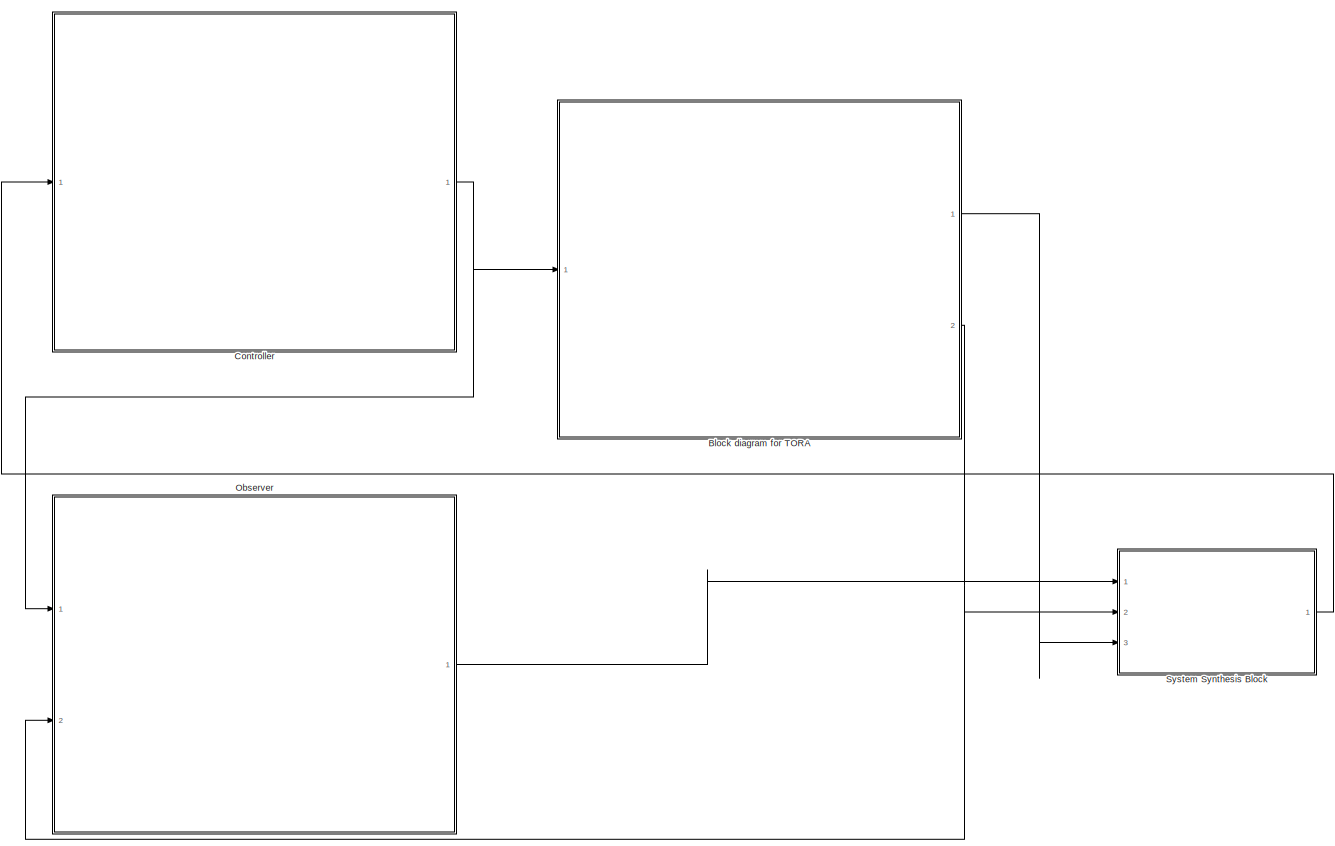
[diagram: root canvas - part 1/1, most of the canvas]
MODEL slx_e6becb501de5
KIND model
CONFIG AbsTol = auto
CONFIG EnableMultiTasking = off
CONFIG FixedStep = auto
CONFIG MaxStep = auto
CONFIG MinStep = auto
CONFIG RelTol = 1e-3
CONFIG SampleTimeConstraint = Unconstrained
CONFIG Solver = VariableStepAuto
CONFIG SolverName = VariableStepAuto
CONFIG StartTime = 0.0
CONFIG StopTime = 10.0
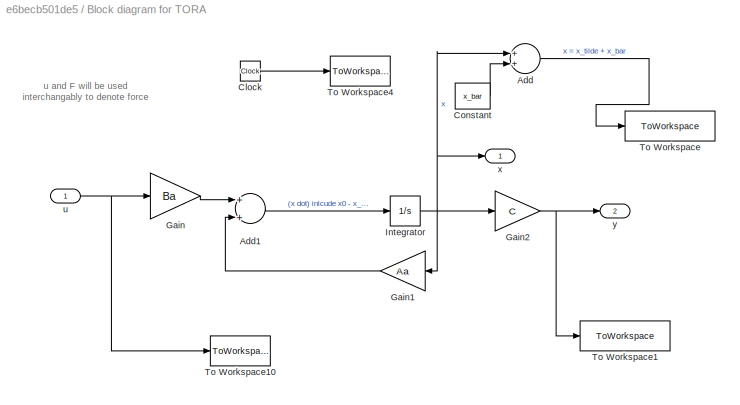
BLOCK [SubSystem] Block diagram for TORA
  Ports = [1, 2]
  RequestExecContextInheritance = off
BLOCK [Sum] Block diagram for TORA/Add
  InputSameDT = off
  OutDataTypeStr = Inherit: Inherit via internal rule
  Ports = [2, 1]
  SaturateOnIntegerOverflow = off
BLOCK [Sum] Block diagram for TORA/Add1
  InputSameDT = off
  OutDataTypeStr = Inherit: Inherit via internal rule
  Ports = [2, 1]
  SaturateOnIntegerOverflow = off
BLOCK [Clock] Block diagram for TORA/Clock
BLOCK [Constant] Block diagram for TORA/Constant
  Value = x_bar
BLOCK [Gain] Block diagram for TORA/Gain
  Gain = Ba
  Multiplication = Matrix(K*u)
  OutDataTypeStr = Inherit: Inherit via internal rule
  ParamDataTypeStr = Inherit: Inherit via internal rule
  SaturateOnIntegerOverflow = off
BLOCK [Gain] Block diagram for TORA/Gain1
  Gain = Aa
  Multiplication = Matrix(K*u)
  OutDataTypeStr = Inherit: Inherit via internal rule
  ParamDataTypeStr = Inherit: Inherit via internal rule
  SaturateOnIntegerOverflow = off
BLOCK [Gain] Block diagram for TORA/Gain2
  Gain = C
  Multiplication = Matrix(K*u)
  OutDataTypeStr = Inherit: Inherit via internal rule
  ParamDataTypeStr = Inherit: Inherit via internal rule
  SaturateOnIntegerOverflow = off
BLOCK [Integrator] Block diagram for TORA/Integrator
  InitialCondition = x0-x_bar
  Ports = [1, 1]
BLOCK [ToWorkspace] Block diagram for TORA/To Workspace
  FixptAsFi = on
  MaxDataPoints = inf
  Ports = [1]
  SampleTime = -1
  VariableName = x
BLOCK [ToWorkspace] Block diagram for TORA/To Workspace1
  FixptAsFi = on
  MaxDataPoints = inf
  Ports = [1]
  SampleTime = -1
  VariableName = y
BLOCK [ToWorkspace] Block diagram for TORA/To Workspace10
  MaxDataPoints = inf
  Ports = [1]
  SampleTime = -1
  VariableName = F
BLOCK [ToWorkspace] Block diagram for TORA/To Workspace4
  MaxDataPoints = inf
  Ports = [1]
  SampleTime = -1
  VariableName = t
BLOCK [Inport] Block diagram for TORA/u
  IconDisplay = Port number
BLOCK [Outport] Block diagram for TORA/x 
  IconDisplay = Port number
  VectorParamsAs1DForOutWhenUnconnected = off
BLOCK [Outport] Block diagram for TORA/y
  IconDisplay = Port number
  Port = 2
  VectorParamsAs1DForOutWhenUnconnected = off
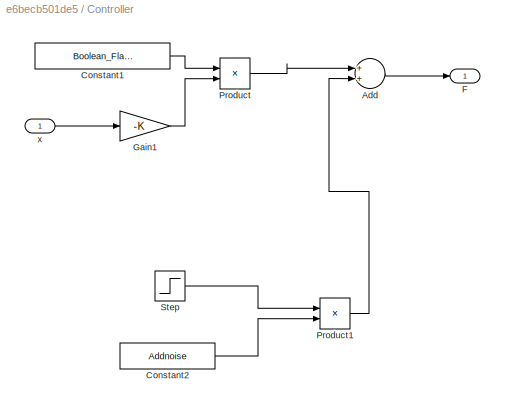
BLOCK [SubSystem] Controller
  Ports = [1, 1]
  RequestExecContextInheritance = off
BLOCK [Sum] Controller/Add
  InputSameDT = off
  OutDataTypeStr = Inherit: Inherit via internal rule
  Ports = [2, 1]
  SaturateOnIntegerOverflow = off
BLOCK [Constant] Controller/Constant1
  Value = Boolean_Flag_for_Controller
BLOCK [Constant] Controller/Constant2
  Value = Addnoise
BLOCK [Outport] Controller/F
  IconDisplay = Port number
BLOCK [Gain] Controller/Gain1
  Gain = -K
  Multiplication = Matrix(K*u)
  OutDataTypeStr = Inherit: Inherit via internal rule
  ParamDataTypeStr = Inherit: Inherit via internal rule
  SaturateOnIntegerOverflow = off
BLOCK [Product] Controller/Product
  InputSameDT = off
  OutDataTypeStr = Inherit: Inherit via internal rule
  Ports = [2, 1]
  RndMeth = Floor
  SaturateOnIntegerOverflow = off
BLOCK [Product] Controller/Product1
  InputSameDT = off
  OutDataTypeStr = Inherit: Inherit via internal rule
  Ports = [2, 1]
  RndMeth = Floor
  SaturateOnIntegerOverflow = off
BLOCK [Step] Controller/Step
  After = 2
  SampleTime = 0
  Time = 5
BLOCK [Inport] Controller/x
  IconDisplay = Port number
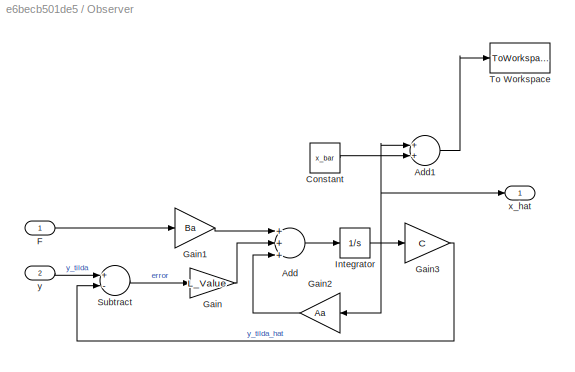
BLOCK [SubSystem] Observer
  Ports = [2, 1]
  RequestExecContextInheritance = off
BLOCK [Sum] Observer/Add
  InputSameDT = off
  Inputs = +++
  OutDataTypeStr = Inherit: Inherit via internal rule
  Ports = [3, 1]
  SaturateOnIntegerOverflow = off
BLOCK [Sum] Observer/Add1
  InputSameDT = off
  OutDataTypeStr = Inherit: Inherit via internal rule
  Ports = [2, 1]
  SaturateOnIntegerOverflow = off
BLOCK [Constant] Observer/Constant
  Value = x_bar
BLOCK [Inport] Observer/F
  IconDisplay = Port number
BLOCK [Gain] Observer/Gain
  Gain = L_Value
  Multiplication = Matrix(K*u)
  OutDataTypeStr = Inherit: Inherit via internal rule
  ParamDataTypeStr = Inherit: Inherit via internal rule
  SaturateOnIntegerOverflow = off
BLOCK [Gain] Observer/Gain1
  Gain = Ba
  Multiplication = Matrix(K*u)
  OutDataTypeStr = Inherit: Inherit via internal rule
  ParamDataTypeStr = Inherit: Inherit via internal rule
  SaturateOnIntegerOverflow = off
BLOCK [Gain] Observer/Gain2
  Gain = Aa
  Multiplication = Matrix(K*u)
  OutDataTypeStr = Inherit: Inherit via internal rule
  ParamDataTypeStr = Inherit: Inherit via internal rule
  SaturateOnIntegerOverflow = off
BLOCK [Gain] Observer/Gain3
  Gain = C
  Multiplication = Matrix(K*u)
  OutDataTypeStr = Inherit: Inherit via internal rule
  ParamDataTypeStr = Inherit: Inherit via internal rule
  SaturateOnIntegerOverflow = off
BLOCK [Integrator] Observer/Integrator
  Ports = [1, 1]
BLOCK [Sum] Observer/Subtract
  InputSameDT = off
  Inputs = +-
  OutDataTypeStr = Inherit: Inherit via internal rule
  Ports = [2, 1]
  SaturateOnIntegerOverflow = off
BLOCK [ToWorkspace] Observer/To Workspace
  FixptAsFi = on
  MaxDataPoints = inf
  Ports = [1]
  SampleTime = -1
  VariableName = x_hat
BLOCK [Outport] Observer/x_hat
  IconDisplay = Port number
  VectorParamsAs1DForOutWhenUnconnected = off
BLOCK [Inport] Observer/y
  IconDisplay = Port number
  Port = 2
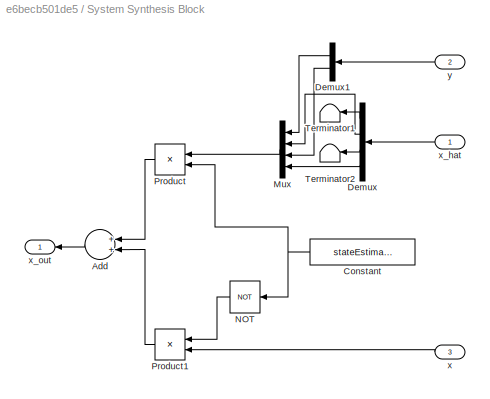
BLOCK [SubSystem] System Synthesis Block
  Ports = [3, 1]
  RequestExecContextInheritance = off
BLOCK [Sum] System Synthesis Block/Add
  InputSameDT = off
  OutDataTypeStr = Inherit: Inherit via internal rule
  Ports = [2, 1]
  SaturateOnIntegerOverflow = off
BLOCK [Constant] System Synthesis Block/Constant
  Value = stateEstimates
BLOCK [Demux] System Synthesis Block/Demux
  DisplayOption = bar
  Ports = [1, 4]
BLOCK [Demux] System Synthesis Block/Demux1
  DisplayOption = bar
  Outputs = 2
  Ports = [1, 2]
BLOCK [Mux] System Synthesis Block/Mux
  DisplayOption = bar
  Ports = [4, 1]
BLOCK [Logic] System Synthesis Block/NOT
  AllPortsSameDT = off
  IconShape = distinctive
  Operator = NOT
  OutDataTypeStr = boolean
  Ports = [1, 1]
BLOCK [Product] System Synthesis Block/Product
  InputSameDT = off
  OutDataTypeStr = Inherit: Inherit via internal rule
  Ports = [2, 1]
  RndMeth = Floor
  SaturateOnIntegerOverflow = off
BLOCK [Product] System Synthesis Block/Product1
  InputSameDT = off
  OutDataTypeStr = Inherit: Inherit via internal rule
  Ports = [2, 1]
  RndMeth = Floor
  SaturateOnIntegerOverflow = off
BLOCK [Terminator] System Synthesis Block/Terminator1
BLOCK [Terminator] System Synthesis Block/Terminator2
BLOCK [Inport] System Synthesis Block/x
  IconDisplay = Port number
  Port = 3
BLOCK [Inport] System Synthesis Block/x_hat
  IconDisplay = Port number
BLOCK [Outport] System Synthesis Block/x_out
  IconDisplay = Port number
BLOCK [Inport] System Synthesis Block/y
  IconDisplay = Port number
  Port = 2
ANNOTATION Block diagram for TORA: u and F will be used interchangably to denote force
LINE Block diagram for TORA/Add1:1 -> Block diagram for TORA/Integrator:1
LINE Block diagram for TORA/Add:1 -> Block diagram for TORA/To Workspace:1
LINE Block diagram for TORA/Clock:1 -> Block diagram for TORA/To Workspace4:1
LINE Block diagram for TORA/Constant:1 -> Block diagram for TORA/Add:2
LINE Block diagram for TORA/Gain1:1 -> Block diagram for TORA/Add1:2
NET Block diagram for TORA/Gain2:1 -> Block diagram for TORA/To Workspace1:1, Block diagram for TORA/y:1
LINE Block diagram for TORA/Gain:1 -> Block diagram for TORA/Add1:1
NET Block diagram for TORA/Integrator:1 -> Block diagram for TORA/Add:1, Block diagram for TORA/Gain1:1, Block diagram for TORA/Gain2:1, Block diagram for TORA/x :1
NET Block diagram for TORA/u:1 -> Block diagram for TORA/Gain:1, Block diagram for TORA/To Workspace10:1
LINE Block diagram for TORA:1 -> System Synthesis Block:3
NET Block diagram for TORA:2 -> Observer:2, System Synthesis Block:2
LINE Controller/Add:1 -> Controller/F:1
LINE Controller/Constant1:1 -> Controller/Product:1
LINE Controller/Constant2:1 -> Controller/Product1:2
LINE Controller/Gain1:1 -> Controller/Product:2
LINE Controller/Product1:1 -> Controller/Add:2
LINE Controller/Product:1 -> Controller/Add:1
LINE Controller/Step:1 -> Controller/Product1:1
LINE Controller/x:1 -> Controller/Gain1:1
NET Controller:1 -> Block diagram for TORA:1, Observer:1
LINE Observer/Add1:1 -> Observer/To Workspace:1
LINE Observer/Add:1 -> Observer/Integrator:1
LINE Observer/Constant:1 -> Observer/Add1:2
LINE Observer/F:1 -> Observer/Gain1:1
LINE Observer/Gain1:1 -> Observer/Add:1
LINE Observer/Gain2:1 -> Observer/Add:3
LINE Observer/Gain3:1 -> Observer/Subtract:2
LINE Observer/Gain:1 -> Observer/Add:2
NET Observer/Integrator:1 -> Observer/Add1:1, Observer/Gain2:1, Observer/Gain3:1, Observer/x_hat:1
LINE Observer/Subtract:1 -> Observer/Gain:1
LINE Observer/y:1 -> Observer/Subtract:1
LINE Observer:1 -> System Synthesis Block:1
LINE System Synthesis Block/Add:1 -> System Synthesis Block/x_out:1
NET System Synthesis Block/Constant:1 -> System Synthesis Block/NOT:1, System Synthesis Block/Product:2
LINE System Synthesis Block/Demux1:1 -> System Synthesis Block/Mux:1
LINE System Synthesis Block/Demux1:2 -> System Synthesis Block/Mux:3
LINE System Synthesis Block/Demux:1 -> System Synthesis Block/Terminator1:1
LINE System Synthesis Block/Demux:2 -> System Synthesis Block/Mux:2
LINE System Synthesis Block/Demux:3 -> System Synthesis Block/Terminator2:1
LINE System Synthesis Block/Demux:4 -> System Synthesis Block/Mux:4
LINE System Synthesis Block/Mux:1 -> System Synthesis Block/Product:1
LINE System Synthesis Block/NOT:1 -> System Synthesis Block/Product1:1
LINE System Synthesis Block/Product1:1 -> System Synthesis Block/Add:2
LINE System Synthesis Block/Product:1 -> System Synthesis Block/Add:1
LINE System Synthesis Block/x:1 -> System Synthesis Block/Product1:2
LINE System Synthesis Block/x_hat:1 -> System Synthesis Block/Demux:1
LINE System Synthesis Block/y:1 -> System Synthesis Block/Demux1:1
LINE System Synthesis Block:1 -> Controller:1
note: NET lines group one-source signal fan-out (src -> all destinations, sorted); 1:1 wires keep LINE
